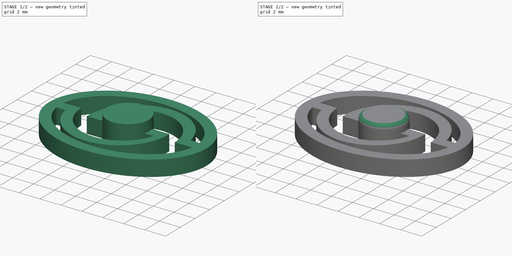
[diagram: build sequence overview — one tinted view per stage of 2, left to right]
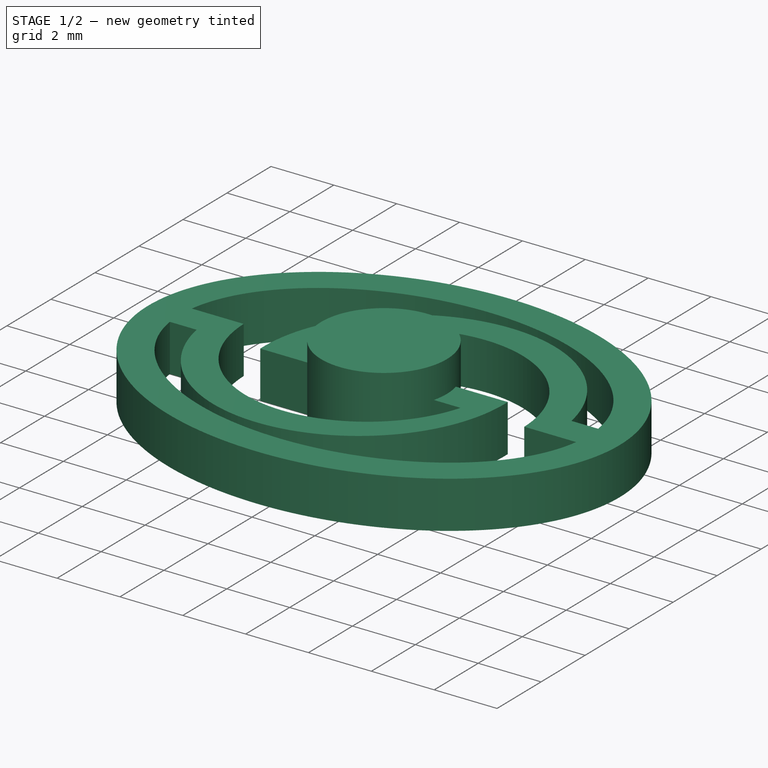
[diagram: stage 1 of 2 — iso view after this stage's code; geometry added in this stage tinted green]
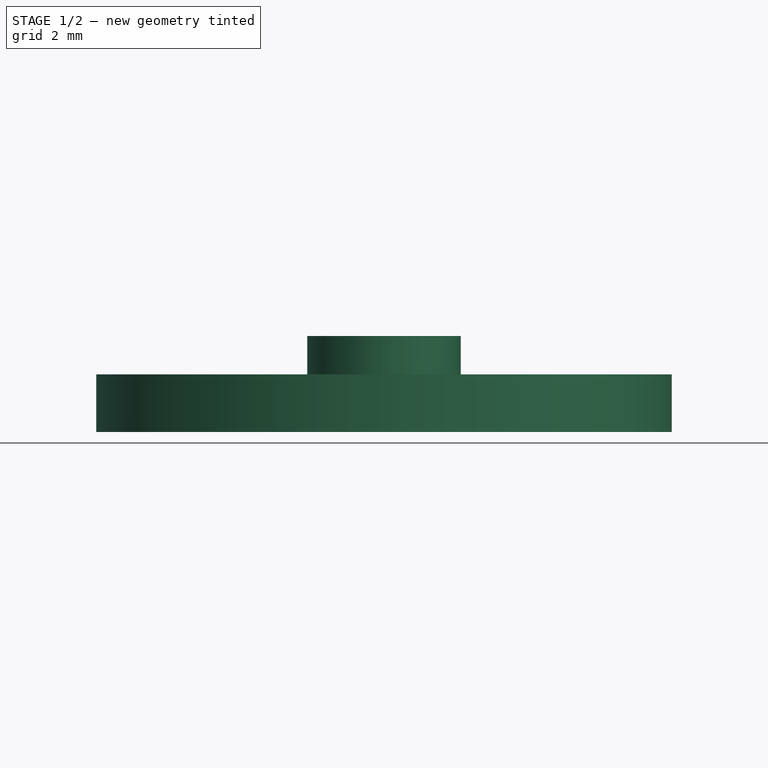
[diagram: stage 1 of 2 — front view after this stage's code; geometry added in this stage tinted green]
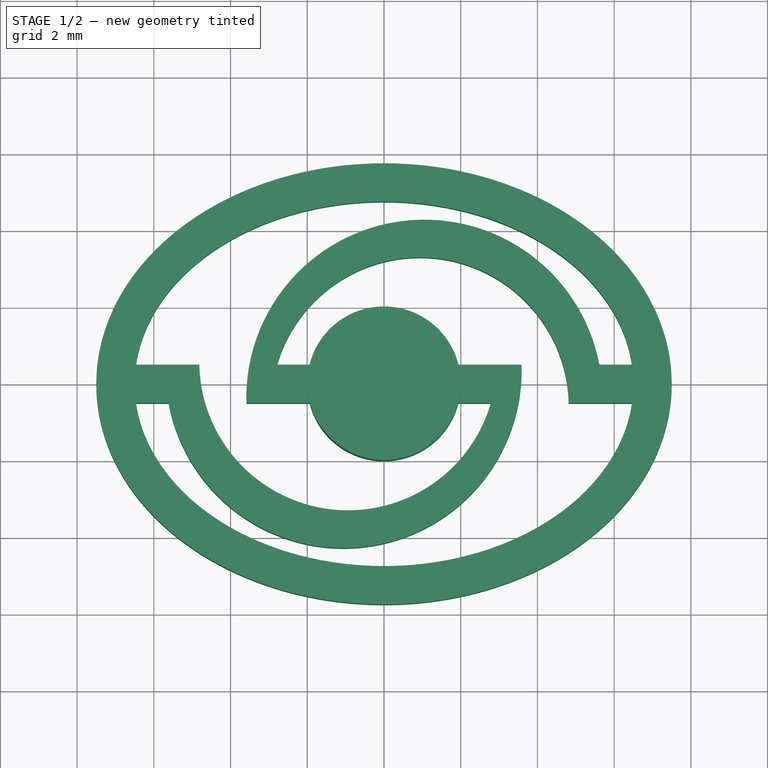
[diagram: stage 1 of 2 — top view after this stage's code; geometry added in this stage tinted green]
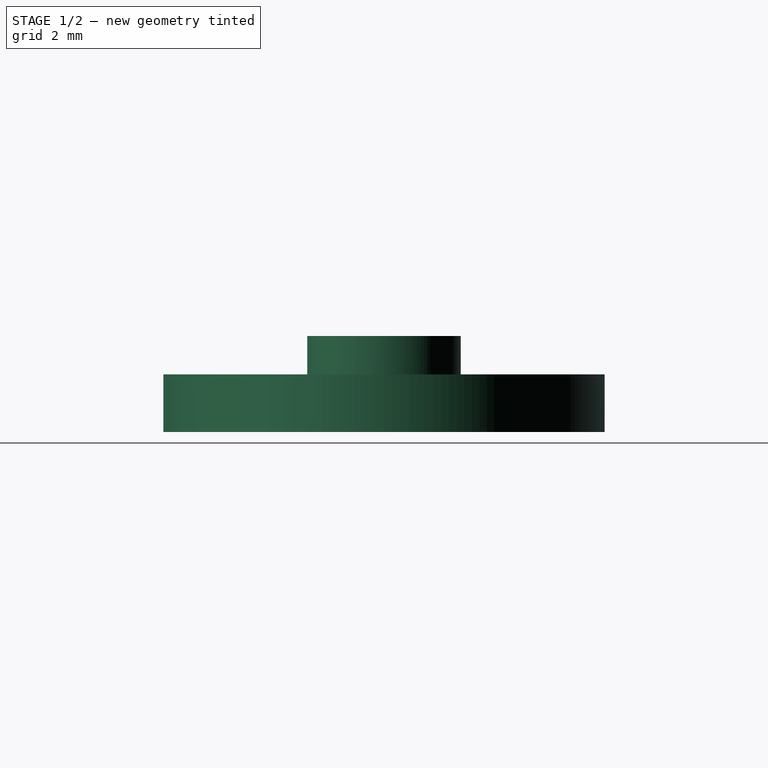
[diagram: stage 1 of 2 — right view after this stage's code; geometry added in this stage tinted green]
FCSTD DOCUMENT  (FreeCAD 0.20R27319 (Git))
Label: Remote Button Cap V3
License: All rights reserved
LicenseURL: http://en.wikipedia.org/wiki/All_rights_reserved
objects: Sketcher::SketchObject×2, PartDesign::Pad×2, PartDesign::Fillet×1, PartDesign::Body×1
note: 9 computed .brp shape members not serialized (recipe doc carries the construction recipe); baked Part::Feature solids carry a one-line shape summary decoded from their .brp

FEATURE [Sketcher::SketchObject] Sketch
  FullyConstrained = false
  MapMode = 5
  Support = -> [XY_Plane]
  sketch-geometry (38):
    g0: Ellipse CenterX=0 CenterY=0 CenterZ=0 NormalX=0 NormalY=0 NormalZ=1 MajorRadius=7.5 MinorRadius=5.75 AngleXU=0
    g1: LineSegment StartX=7.5 StartY=0 StartZ=0 EndX=-7.5 EndY=0 EndZ=0
    g2: LineSegment StartX=0 StartY=5.75 StartZ=0 EndX=0 EndY=-5.75 EndZ=0
    g3: GeomPoint X=4.81534 Y=0 Z=0
    g4: GeomPoint X=-4.81534 Y=0 Z=0
    g5: ArcOfEllipse CenterX=0 CenterY=0 CenterZ=0 NormalX=0 NormalY=0 NormalZ=1 MajorRadius=6.5 MinorRadius=4.75 AngleXU=0 StartAngle=3.24705 EndAngle=6.17773
    g6: LineSegment StartX=6.5 StartY=0 StartZ=0 EndX=-6.5 EndY=0 EndZ=0
    g7: LineSegment StartX=0 StartY=4.75 StartZ=0 EndX=0 EndY=-4.75 EndZ=0
    g8: GeomPoint X=4.43706 Y=0 Z=0
    g9: GeomPoint X=-4.43706 Y=0 Z=0
    g10: ArcOfCircle CenterX=0 CenterY=0 CenterZ=0 NormalX=0 NormalY=0 NormalZ=1 AngleXU=0 Radius=2 StartAngle=3.39427 EndAngle=6.03051
    g11: LineSegment StartX=-6.46389 StartY=-0.5 StartZ=0 EndX=-1.93649 EndY=-0.5 EndZ=0
    g12: LineSegment StartX=6.46389 StartY=0.5 StartZ=0 EndX=1.93649 EndY=0.5 EndZ=0
    g13: ArcOfCircle CenterX=0 CenterY=0 CenterZ=0 NormalX=0 NormalY=0 NormalZ=1 AngleXU=0 Radius=2 StartAngle=0.25268 EndAngle=2.88891
    g14: LineSegment StartX=-1.93649 StartY=0.5 StartZ=0 EndX=-6.46389 EndY=0.5 EndZ=0
    g15: LineSegment StartX=1.93649 StartY=-0.5 StartZ=0 EndX=6.46389 EndY=-0.5 EndZ=0
    g16: Ellipse CenterX=0 CenterY=0 CenterZ=0 NormalX=0 NormalY=0 NormalZ=1 MajorRadius=6.5 MinorRadius=4.75 AngleXU=0
    g17: LineSegment StartX=6.5 StartY=0 StartZ=0 EndX=-6.5 EndY=0 EndZ=0
    g18: LineSegment StartX=0 StartY=4.75 StartZ=0 EndX=0 EndY=-4.75 EndZ=0
    g19: GeomPoint X=4.43706 Y=0 Z=0
    g20: GeomPoint X=-4.43706 Y=0 Z=0
    g21: ArcOfEllipse CenterX=0 CenterY=0 CenterZ=0 NormalX=0 NormalY=0 NormalZ=1 MajorRadius=6.5 MinorRadius=4.75 AngleXU=3e-16 StartAngle=0.105459 EndAngle=3.03613
    g22: LineSegment StartX=6.5 StartY=1.7e-15 StartZ=0 EndX=-6.5 EndY=-1.7e-15 EndZ=0
    g23: LineSegment StartX=-1.2e-15 StartY=4.75 StartZ=0 EndX=1.2e-15 EndY=-4.75 EndZ=0
    g24: GeomPoint X=4.43706 Y=1.2e-15 Z=0
    g25: GeomPoint X=-4.43706 Y=-1.2e-15 Z=0
    g26: LineSegment StartX=-6.46389 StartY=0.5 StartZ=0 EndX=-4.81389 EndY=0.5 EndZ=0
    g27: LineSegment StartX=-6.46389 StartY=-0.5 StartZ=0 EndX=-5.61389 EndY=-0.5 EndZ=0
    g28: LineSegment StartX=6.46389 StartY=0.5 StartZ=0 EndX=5.61389 EndY=0.5 EndZ=0
    g29: LineSegment StartX=6.46389 StartY=-0.5 StartZ=0 EndX=4.81389 EndY=-0.5 EndZ=0
    g30: LineSegment StartX=-1.93649 StartY=0.5 StartZ=0 EndX=-2.78649 EndY=0.5 EndZ=0
    g31: LineSegment StartX=-1.93649 StartY=-0.5 StartZ=0 EndX=-3.58649 EndY=-0.5 EndZ=0
    g32: LineSegment StartX=1.93649 StartY=-0.5 StartZ=0 EndX=2.78649 EndY=-0.5 EndZ=0
    g33: LineSegment StartX=1.93649 StartY=0.5 StartZ=0 EndX=3.58649 EndY=0.5 EndZ=0
    g34: ArcOfCircle CenterX=0.937378 CenterY=-0.580065 CenterZ=0 NormalX=0 NormalY=0 NormalZ=1 AngleXU=0 Radius=3.87734 StartAngle=0.0206509 EndAngle=2.8593
    g35: ArcOfCircle CenterX=-0.937378 CenterY=0.580065 CenterZ=0 NormalX=0 NormalY=0 NormalZ=1 AngleXU=0 Radius=3.87734 StartAngle=3.16224 EndAngle=6.00089
    g36: ArcOfCircle CenterX=1.05298 CenterY=-0.361389 CenterZ=0 NormalX=0 NormalY=0 NormalZ=1 AngleXU=0 Radius=4.64154 StartAngle=0.186665 EndAngle=3.17146
    g37: ArcOfCircle CenterX=-1.05298 CenterY=0.361389 CenterZ=0 NormalX=0 NormalY=0 NormalZ=1 AngleXU=0 Radius=4.64154 StartAngle=3.32826 EndAngle=6.31305
  constraints (72):
    c: InternalAlignment(g1-g4 -> g0) x4
    c: Coincident(g0,g-1)
    c: PointOnObject(g1,g-1)
    c: DistanceX(g1,g1) = 15
    c: DistanceY(g2,g2) = 11.5
    c: InternalAlignment(g6-g9 -> g5) x4
    c: Coincident(g5,g0)
    c: Vertical(g7)
    c: Coincident(g10,g0)
    c: Radius(g10) = 2
    c: Horizontal(g11)
    c: Horizontal(g12)
    c: Symmetric(g14,g11,g-1)
    c: Equal(g10,g13)
    c: Coincident(g10,g13)
    c: PointOnObject(g5,g11)
    c: Coincident(g14,g13)
    c: Coincident(g12,g13)
    c: Coincident(g15,g10)
    c: Coincident(g11,g10)
    c: Horizontal(g15)
    c: Coincident(g5,g11)
    c: Coincident(g5,g15)
    c: Symmetric(g12,g5,g-1)
    c: InternalAlignment(g17-g20 -> g16) x4
    c: Coincident(g16,g0)
    c: Vertical(g18)
    c: DistanceY(g18,g2) = 1
    c: DistanceX(g17,g1) = 1
    c: Equal(g5,g16)
    c: InternalAlignment(g22-g25 -> g21) x4
    c: Coincident(g21,g0)
    c: Equal(g21,g16)
    c: Coincident(g21,g14)
    c: Coincident(g21,g12)
    c: DistanceY(g5,g14) = 1
    c: Coincident(g26,g21)
    c: PointOnObject(g26,g14)
    c: Horizontal(g26)
    c: Coincident(g27,g5)
    c: PointOnObject(g27,g11)
    c: Coincident(g28,g21)
    c: PointOnObject(g28,g12)
    c: Coincident(g29,g5)
    c: PointOnObject(g29,g15)
    c: Coincident(g30,g13)
    c: PointOnObject(g30,g14)
    c: Horizontal(g30)
    c: Coincident(g31,g10)
    c: PointOnObject(g31,g11)
    c: Coincident(g32,g10)
    c: PointOnObject(g32,g15)
    c: Coincident(g33,g13)
    c: PointOnObject(g33,g12)
    c: Coincident(g34,g30)
    c: Coincident(g34,g29)
    c: Equal(g28,g32)
    c: Equal(g32,g27)
    c: Equal(g27,g30)
    c: Equal(g26,g31)
    c: Equal(g31,g29)
    c: Equal(g29,g33)
    c: Coincident(g35,g26)
    c: Coincident(g35,g32)
    c: Equal(g35,g34)
    c: Coincident(g36,g31)
    c: Coincident(g36,g28)
    c: Coincident(g37,g27)
    c: Coincident(g37,g33)
    c: Equal(g36,g37)
    c: Distance(g27) = 0.85
    c: Distance(g26) = 1.65
FEATURE [PartDesign::Pad] Pad
  Direction = (0,0,1)
  Length = 1.5
  Length2 = 10
  Profile = -> Sketch
  ReferenceAxis = -> Sketch [N_Axis]
  Type = 0
FEATURE [Sketcher::SketchObject] Sketch002
  FullyConstrained = false
  MapMode = 5
  Placement = pos=(0,0,1.5) rot=(0,0,1;0rad)
  sketch-geometry (1):
    g0: Circle CenterX=0 CenterY=0 CenterZ=0 NormalX=0 NormalY=0 NormalZ=1 AngleXU=0 Radius=2
FEATURE [PartDesign::Pad] Pad001
  BaseFeature = -> Pad
  Direction = (0,0,1)
  Length = 1
  Length2 = 10
  Profile = -> Sketch002
  ReferenceAxis = -> Sketch002 [N_Axis]
  Type = 0
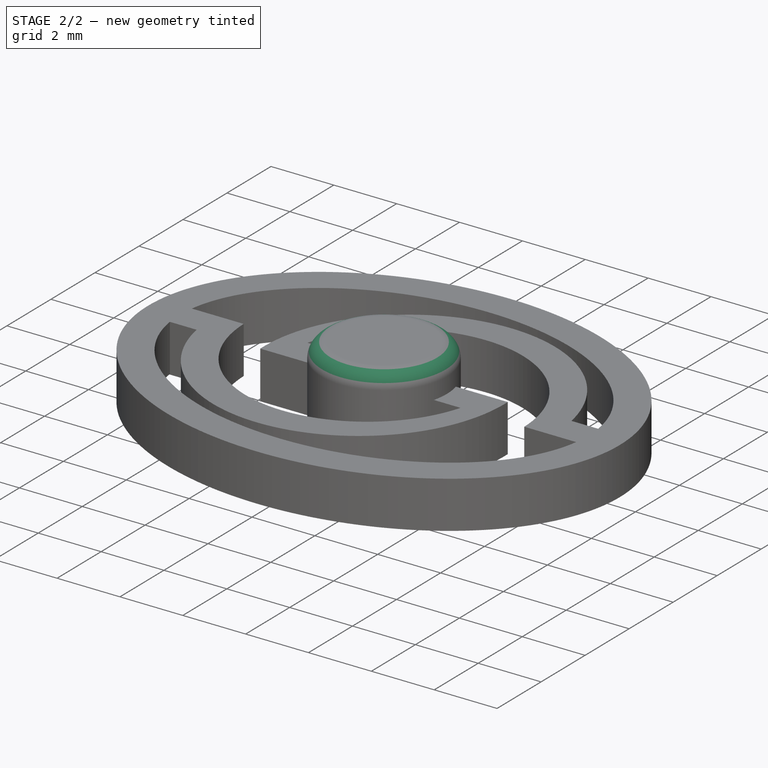
[diagram: stage 2 of 2 — iso view after this stage's code; geometry added in this stage tinted green]
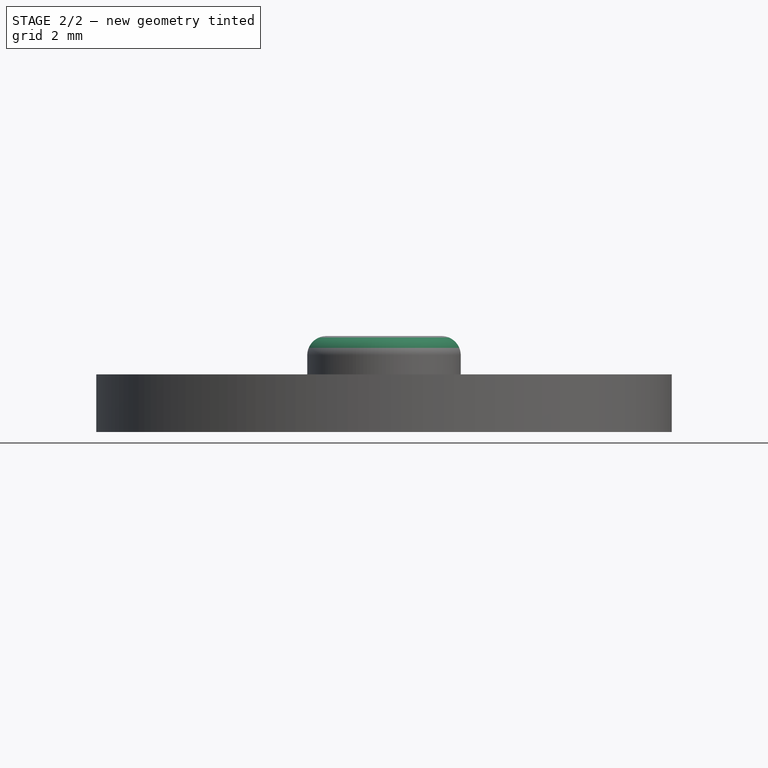
[diagram: stage 2 of 2 — front view after this stage's code; geometry added in this stage tinted green]
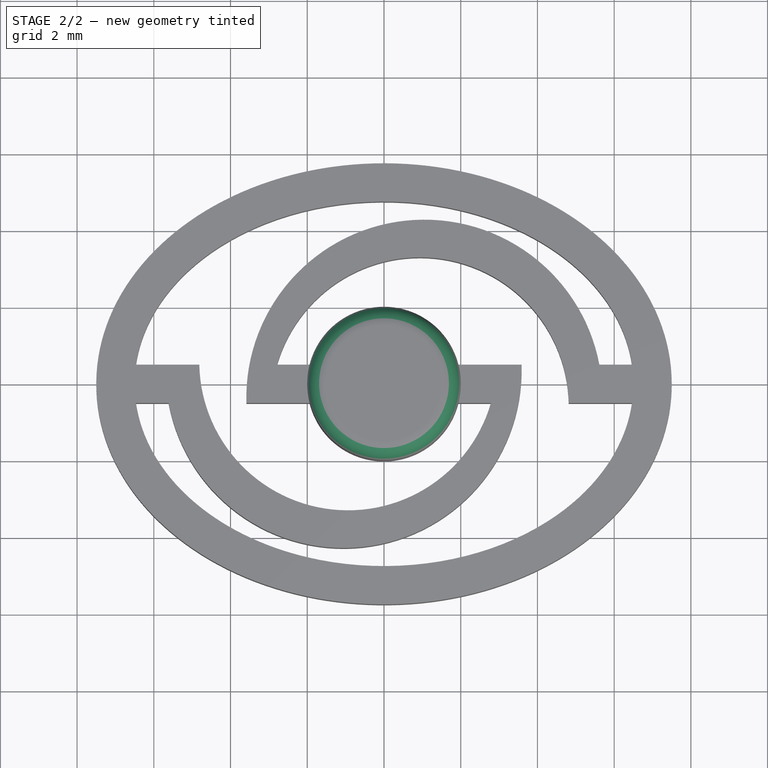
[diagram: stage 2 of 2 — top view after this stage's code; geometry added in this stage tinted green]
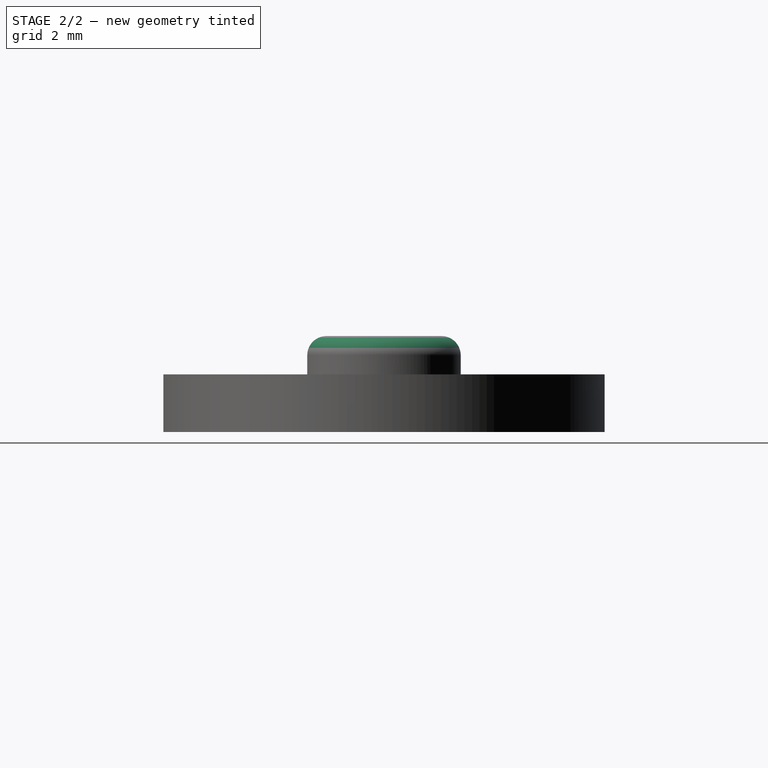
[diagram: stage 2 of 2 — right view after this stage's code; geometry added in this stage tinted green]
FEATURE [PartDesign::Fillet] Fillet
  Base = -> Pad001 [Face21]
  BaseFeature = -> Pad001
  Radius = 0.5
  SupportTransform = false
FEATURE [PartDesign::Body] Body
  Group = -> [Sketch,Pad,Sketch002,Pad001,Fillet]
  Origin = -> Origin
  Tip = -> Fillet
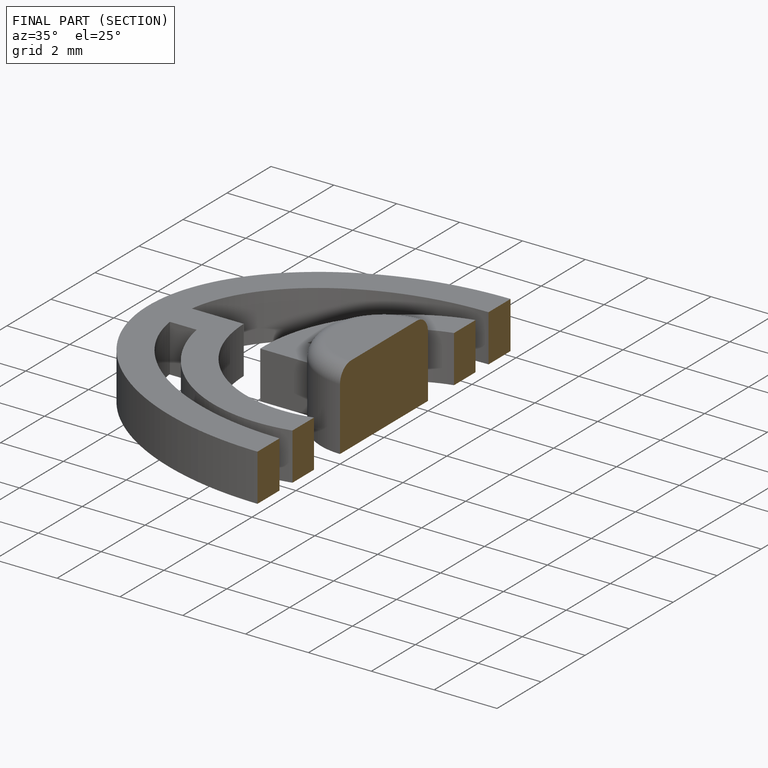
[diagram: finished part — half-section view (interior)]
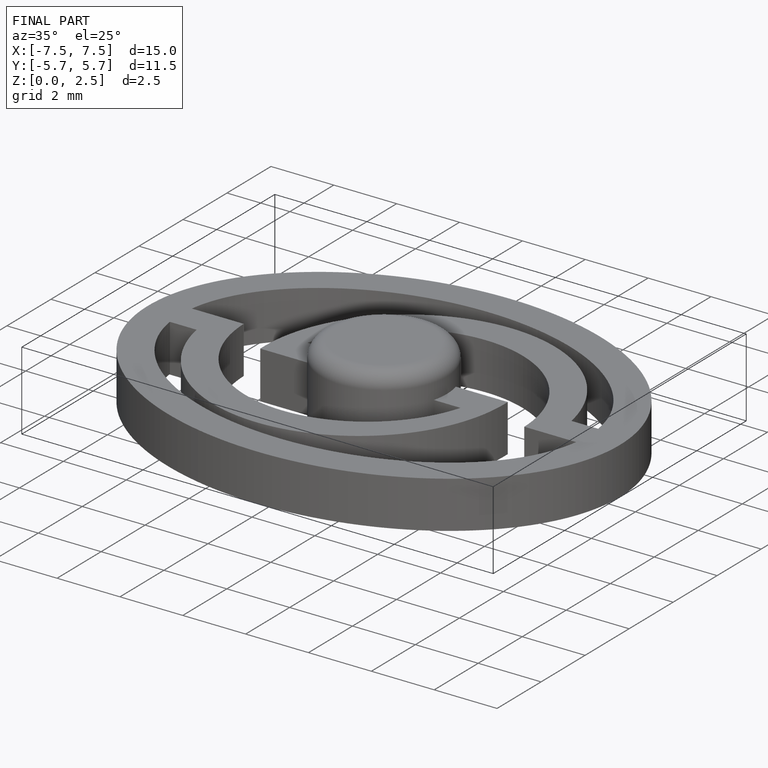
[diagram: finished part — iso view with bounding-box wireframe]
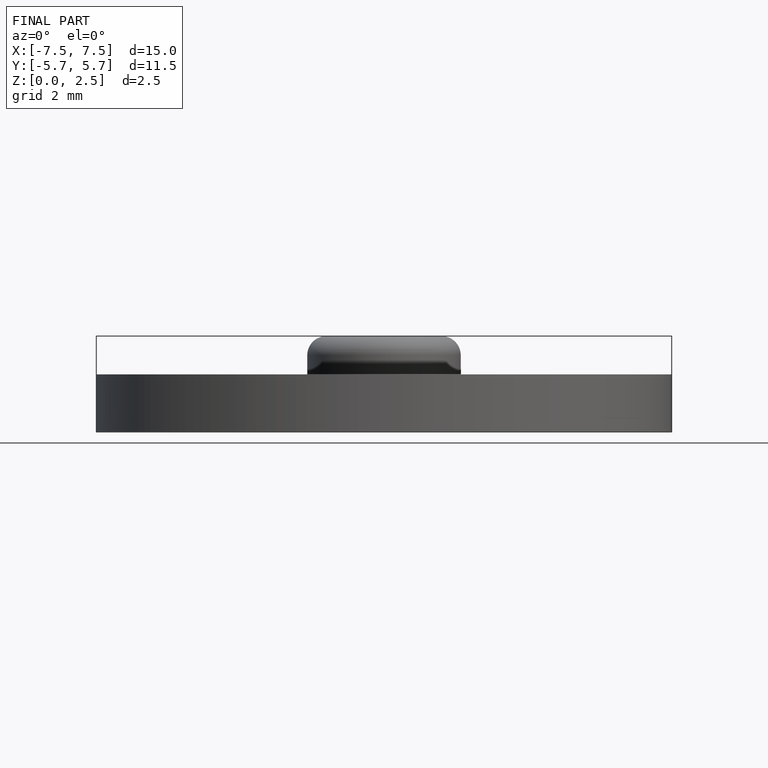
[diagram: finished part — front view with bounding-box wireframe]
